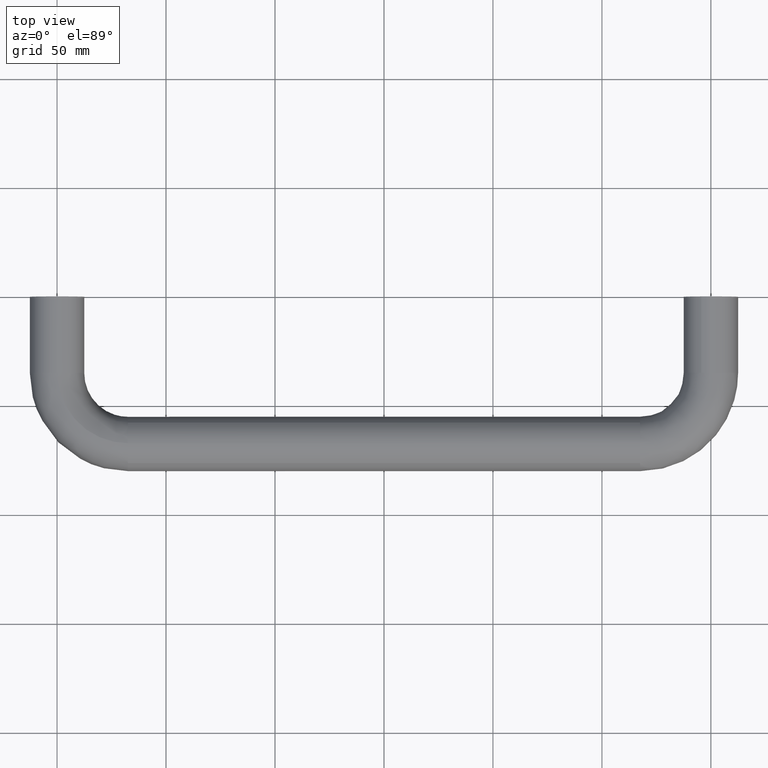
[diagram: clean part render]
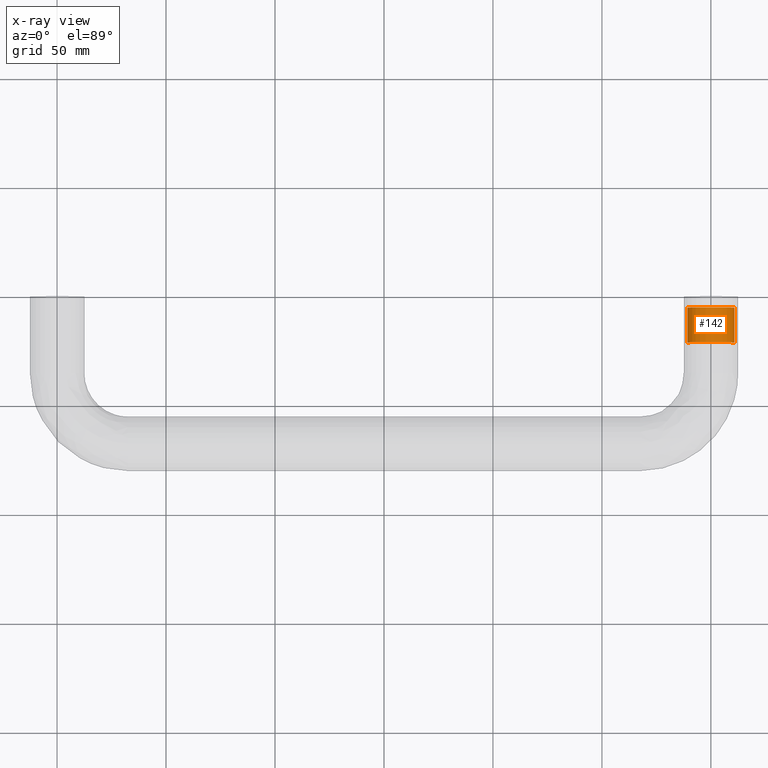
[diagram: x-ray — body ghosted, one internal face saturated and labeled with its STEP entity id]
A machine part, top view, then the same camera in x-ray: the body is ghosted and one INTERNAL B-rep face — a face not visible from any outside direction — is saturated and labeled: STEP entity #142.
In plain terms, the highlighted face is a freeform B-spline surface patch.
Its self-contained STEP definition (entity closure, byte-faithful):
#44=CARTESIAN_POINT('',(-10.766707204317781,-21.400000000000009,0.847358233860732));
#45=CARTESIAN_POINT('',(-9.919348970457047,-21.400000000000002,11.614065438178512));
#46=CARTESIAN_POINT('',(0.847358233860732,-21.400000000000009,10.766707204317781));
#47=CARTESIAN_POINT('',(11.614065438178512,-21.400000000000002,9.919348970457047));
#48=CARTESIAN_POINT('',(10.766707204317781,-21.400000000000009,-0.847358233860732));
#49=CARTESIAN_POINT('',(-10.766707204317781,-4.590000000000000,0.847358233860732));
#50=CARTESIAN_POINT('',(-9.919348970457047,-4.590000000000000,11.614065438178512));
#51=CARTESIAN_POINT('',(0.847358233860732,-4.590000000000000,10.766707204317781));
#52=CARTESIAN_POINT('',(11.614065438178512,-4.590000000000000,9.919348970457047));
#53=CARTESIAN_POINT('',(10.766707204317781,-4.590000000000000,-0.847358233860732));
#61=(BOUNDED_SURFACE()B_SPLINE_SURFACE(2,1,((#44,#49),(#45,#50),(#46,#51),(#47,#52),(#48,#53)),.UNSPECIFIED.,.F.,.F.,.U.)B_SPLINE_SURFACE_WITH_KNOTS((3,2,3),(2,2),(0.0,17.894025894517700,35.788051789035407),(0.0,16.810000000000009),.UNSPECIFIED.)GEOMETRIC_REPRESENTATION_ITEM()RATIONAL_B_SPLINE_SURFACE(((1.0,1.0),(0.707106781186548,0.707106781186548),(1.0,1.0),(0.707106781186548,0.707106781186548),(1.0,1.0)))REPRESENTATION_ITEM('')SURFACE());
#62=CARTESIAN_POINT('',(0.0,-5.0,10.800000000000001));
#63=VERTEX_POINT('',#62);
#64=CARTESIAN_POINT('',(-10.766707764273210,-5.000000000000078,0.847351118892327));
#65=VERTEX_POINT('',#64);
#66=CARTESIAN_POINT('',(0.0,-5.0,10.800000000000001));
#67=CARTESIAN_POINT('',(-9.983423927657171,-4.999999999999999,10.800000000000001));
#68=CARTESIAN_POINT('',(-10.766707764273203,-5.000000000000078,0.847351118892327));
#76=(BOUNDED_CURVE()B_SPLINE_CURVE(2,(#66,#67,#68),.UNSPECIFIED.,.F.,.U.)B_SPLINE_CURVE_WITH_KNOTS((3,3),(0.0,0.236331413915305),.UNSPECIFIED.)CURVE()GEOMETRIC_REPRESENTATION_ITEM()RATIONAL_B_SPLINE_CURVE((1.0,0.723120525886448,0.969723592583950))REPRESENTATION_ITEM(''));
#77=EDGE_CURVE('',#63,#65,#76,.T.);
#78=ORIENTED_EDGE('',*,*,#77,.T.);
#79=CARTESIAN_POINT('',(-10.766707757388451,-21.0,0.847351206372920));
#80=VERTEX_POINT('',#79);
#81=CARTESIAN_POINT('',(-10.766707757388451,-21.0,0.847351206372920));
#82=CARTESIAN_POINT('',(-10.766707764273210,-5.000000000000078,0.847351118892327));
#83=QUASI_UNIFORM_CURVE('',1,(#81,#82),.UNSPECIFIED.,.F.,.U.);
#84=EDGE_CURVE('',#80,#65,#83,.T.);
#85=ORIENTED_EDGE('',*,*,#84,.F.);
#86=CARTESIAN_POINT('',(0.0,-21.0,10.800000000000001));
#87=VERTEX_POINT('',#86);
#88=CARTESIAN_POINT('',(0.0,-21.0,10.800000000000001));
#89=CARTESIAN_POINT('',(-9.983423846290021,-21.000000000000004,10.799999999999999));
#90=CARTESIAN_POINT('',(-10.766707757388451,-20.999999999999996,0.847351206372920));
#98=(BOUNDED_CURVE()B_SPLINE_CURVE(2,(#88,#89,#90),.UNSPECIFIED.,.F.,.U.)B_SPLINE_CURVE_WITH_KNOTS((3,3),(0.0,0.236331412522463),.UNSPECIFIED.)CURVE()GEOMETRIC_REPRESENTATION_ITEM()RATIONAL_B_SPLINE_CURVE((1.0,0.723120527518264,0.969723589677193))REPRESENTATION_ITEM(''));
#99=EDGE_CURVE('',#87,#80,#98,.T.);
#100=ORIENTED_EDGE('',*,*,#99,.F.);
#101=CARTESIAN_POINT('',(10.766707757388451,-21.0,-0.847351206372920));
#102=VERTEX_POINT('',#101);
#103=CARTESIAN_POINT('',(10.766707757388453,-21.0,-0.847351206372920));
#104=CARTESIAN_POINT('',(10.800000000000004,-20.999999999999996,-0.424329625632981));
#105=CARTESIAN_POINT('',(10.800000000000001,-21.0,0.0));
#106=CARTESIAN_POINT('',(10.800000000000001,-21.000000000000004,10.800000000000001));
#107=CARTESIAN_POINT('',(0.0,-21.0,10.800000000000001));
#115=(BOUNDED_CURVE()B_SPLINE_CURVE(2,(#103,#104,#105,#106,#107),.UNSPECIFIED.,.F.,.U.)B_SPLINE_CURVE_WITH_KNOTS((3,2,3),(0.736331412522463,0.750000000000000,1.0),.UNSPECIFIED.)CURVE()GEOMETRIC_REPRESENTATION_ITEM()RATIONAL_B_SPLINE_CURVE((0.969723589677193,0.983986253668284,1.0,0.707106781186548,1.0))REPRESENTATION_ITEM(''));
#116=EDGE_CURVE('',#102,#87,#115,.T.);
#117=ORIENTED_EDGE('',*,*,#116,.F.);
#118=CARTESIAN_POINT('',(10.766707764273210,-5.000000000000078,-0.847351118892325));
#119=VERTEX_POINT('',#118);
#120=CARTESIAN_POINT('',(10.766707757388451,-21.0,-0.847351206372920));
#121=CARTESIAN_POINT('',(10.766707764273210,-5.000000000000078,-0.847351118892325));
#122=QUASI_UNIFORM_CURVE('',1,(#120,#121),.UNSPECIFIED.,.F.,.U.);
#123=EDGE_CURVE('',#102,#119,#122,.T.);
#124=ORIENTED_EDGE('',*,*,#123,.T.);
#125=CARTESIAN_POINT('',(10.766707764273212,-5.000000000000078,-0.847351118892325));
#126=CARTESIAN_POINT('',(10.799999999999997,-5.0,-0.424329581689702));
#127=CARTESIAN_POINT('',(10.800000000000001,-5.0,0.0));
#128=CARTESIAN_POINT('',(10.800000000000001,-5.000000000000001,10.800000000000001));
#129=CARTESIAN_POINT('',(0.0,-5.0,10.800000000000001));
#137=(BOUNDED_CURVE()B_SPLINE_CURVE(2,(#125,#126,#127,#128,#129),.UNSPECIFIED.,.F.,.U.)B_SPLINE_CURVE_WITH_KNOTS((3,2,3),(0.736331413915305,0.750000000000000,1.0),.UNSPECIFIED.)CURVE()GEOMETRIC_REPRESENTATION_ITEM()RATIONAL_B_SPLINE_CURVE((0.969723592583950,0.983986255300099,1.0,0.707106781186548,1.0))REPRESENTATION_ITEM(''));
#138=EDGE_CURVE('',#119,#63,#137,.T.);
#139=ORIENTED_EDGE('',*,*,#138,.T.);
#140=EDGE_LOOP('',(#78,#85,#100,#117,#124,#139));
#141=FACE_OUTER_BOUND('',#140,.T.);
#142=ADVANCED_FACE('',(#141),#61,.T.);